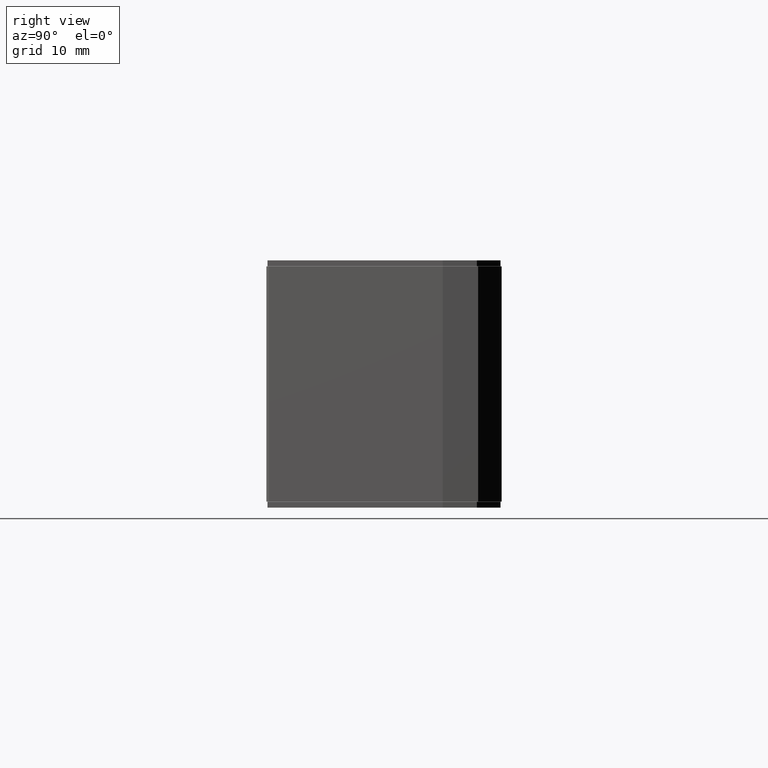
[diagram: clean part render]
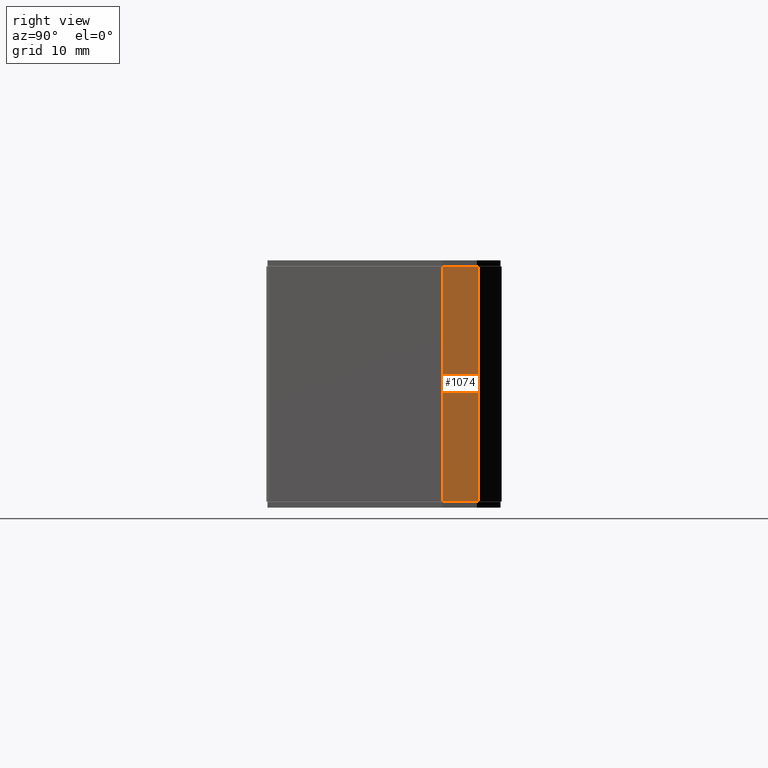
[diagram: same view with one face highlighted and labeled with its STEP entity id]
A machine part, right view. The second image highlights one B-rep face of the part: STEP entity #1074.
In plain terms, the highlighted planar face has unit normal (1, -0, 0).
Its self-contained STEP definition (entity closure, byte-faithful):
#1074 = ADVANCED_FACE ( 'NONE', ( #5287 ), #5272, .T. ) ;
#1075 = EDGE_LOOP ( 'NONE', ( #1076, #1106, #1109, #1112 ) ) ;
#1076 = ORIENTED_EDGE ( 'NONE', *, *, #1103, .F. ) ;
#1103 = EDGE_CURVE ( 'NONE', #1104, #1105, #5362, .T. ) ;
#1104 = VERTEX_POINT ( 'NONE', #5180 ) ;
#1105 = VERTEX_POINT ( 'NONE', #5179 ) ;
#1106 = ORIENTED_EDGE ( 'NONE', *, *, #1107, .T. ) ;
#1107 = EDGE_CURVE ( 'NONE', #1104, #1108, #5178, .T. ) ;
#1108 = VERTEX_POINT ( 'NONE', #5174 ) ;
#1109 = ORIENTED_EDGE ( 'NONE', *, *, #1110, .T. ) ;
#1110 = EDGE_CURVE ( 'NONE', #1108, #1111, #5173, .T. ) ;
#1111 = VERTEX_POINT ( 'NONE', #5169 ) ;
#1112 = ORIENTED_EDGE ( 'NONE', *, *, #1115, .F. ) ;
#1115 = EDGE_CURVE ( 'NONE', #1105, #1111, #5323, .T. ) ;
#5169 = CARTESIAN_POINT ( 'NONE',  ( 27.31481481481482000, 14.32716049382710100, 2.091903039680431700E-011 ) ) ;
#5170 = DIRECTION ( 'NONE',  ( -1.848892746611746400E-032, -5.296998494942644200E-033, 1.000000000000000000 ) ) ;
#5171 = VECTOR ( 'NONE', #5170, 1000.000000000000000 ) ;
#5172 = CARTESIAN_POINT ( 'NONE',  ( 27.31481481481482000, 14.32716049382710100, -19.99999999997908200 ) ) ;
#5173 = LINE ( 'NONE', #5172, #5171 ) ;
#5174 = CARTESIAN_POINT ( 'NONE',  ( 27.31481481481482000, 14.32716049382710100, -19.99999999997908200 ) ) ;
#5175 = DIRECTION ( 'NONE',  ( -9.860761315262647600E-032, 1.000000000000000000, -5.296998494942644200E-033 ) ) ;
#5176 = VECTOR ( 'NONE', #5175, 1000.000000000000000 ) ;
#5177 = CARTESIAN_POINT ( 'NONE',  ( 27.31481481481482000, 16.32716049382710500, -19.99999999997908200 ) ) ;
#5178 = LINE ( 'NONE', #5177, #5176 ) ;
#5179 = CARTESIAN_POINT ( 'NONE',  ( 27.31481481481482000, 11.32716049382710500, 2.091903039680431700E-011 ) ) ;
#5180 = CARTESIAN_POINT ( 'NONE',  ( 27.31481481481482000, 11.32716049382710500, -19.99999999997908200 ) ) ;
#5181 = DIRECTION ( 'NONE',  ( -1.848892746611747000E-032, -5.296998494942644900E-033, 1.000000000000000000 ) ) ;
#5182 = VECTOR ( 'NONE', #5181, 1000.000000000000000 ) ;
#5272 = PLANE ( 'NONE',  #5356 ) ;
#5287 = FACE_OUTER_BOUND ( 'NONE', #1075, .T. ) ;
#5320 = DIRECTION ( 'NONE',  ( -9.860761315262647600E-032, 1.000000000000000000, -5.296998494942644200E-033 ) ) ;
#5321 = VECTOR ( 'NONE', #5320, 1000.000000000000000 ) ;
#5322 = CARTESIAN_POINT ( 'NONE',  ( 27.31481481481482000, 16.32716049382710500, 2.091903039680431700E-011 ) ) ;
#5323 = LINE ( 'NONE', #5322, #5321 ) ;
#5353 = DIRECTION ( 'NONE',  ( 1.848892746611746400E-032, 5.296998494942644200E-033, -1.000000000000000000 ) ) ;
#5354 = DIRECTION ( 'NONE',  ( 1.000000000000000000, -9.860761315262647600E-032, 1.848892746611746400E-032 ) ) ;
#5355 = CARTESIAN_POINT ( 'NONE',  ( 27.31481481481482000, 16.32716049382710500, -19.99999999997908200 ) ) ;
#5356 = AXIS2_PLACEMENT_3D ( 'NONE', #5355, #5354, #5353 ) ;
#5357 = CARTESIAN_POINT ( 'NONE',  ( 27.31481481481482000, 11.32716049382710500, -20.99999999997908500 ) ) ;
#5362 = LINE ( 'NONE', #5357, #5182 ) ;